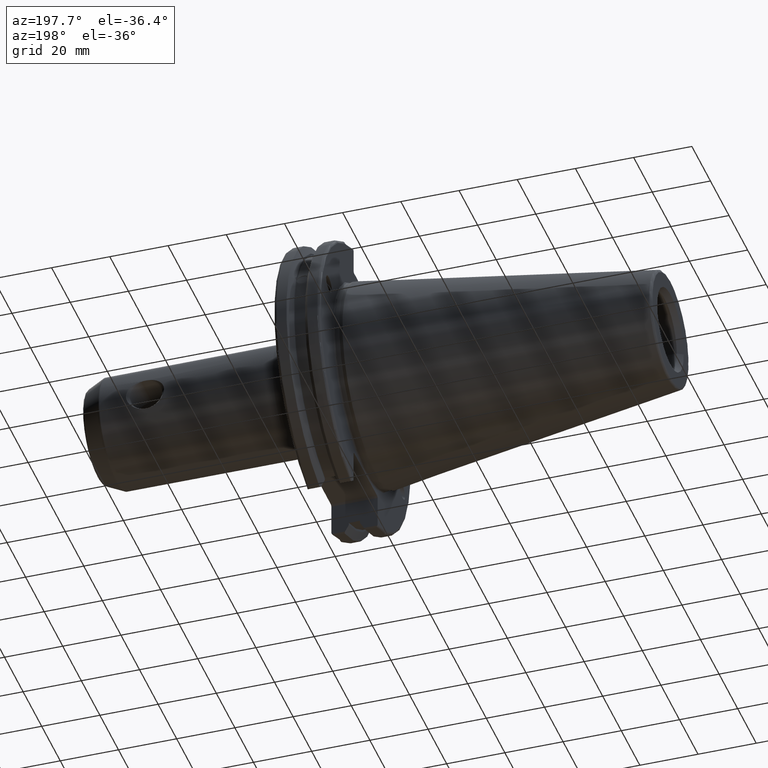
[diagram: clean part render]
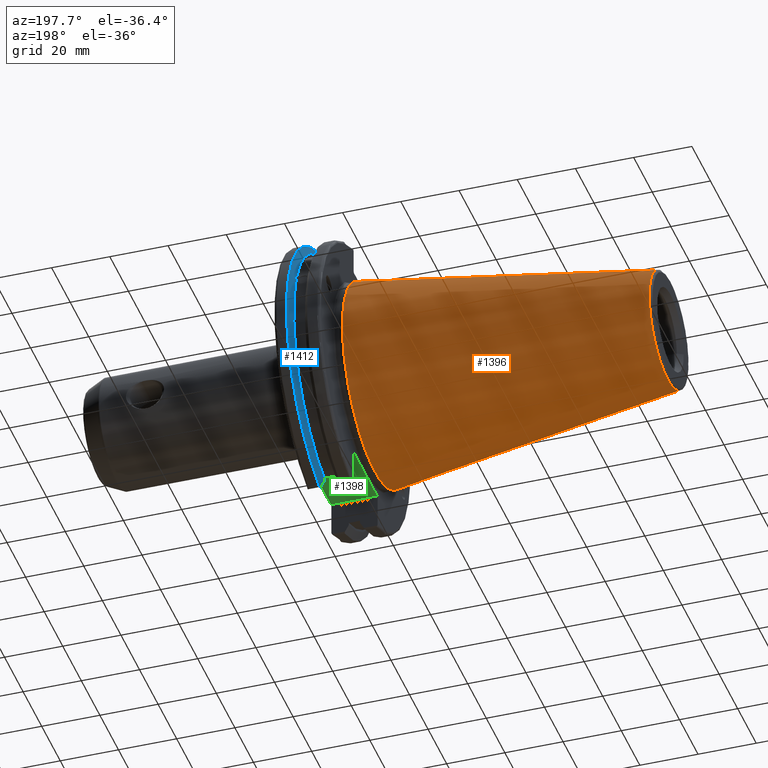
[diagram: same view with three faces highlighted in distinct colors, each labeled with its STEP entity id]
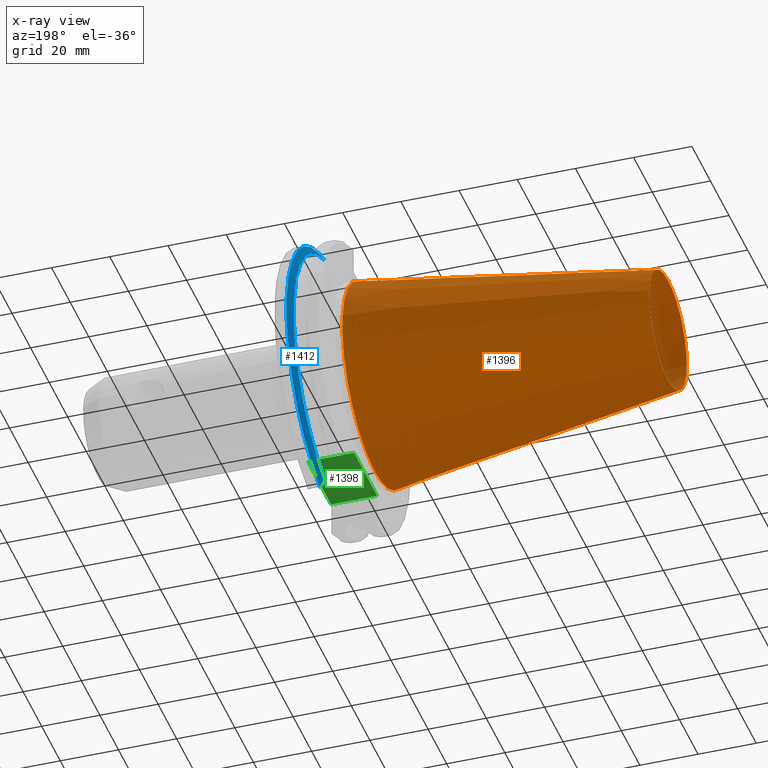
[diagram: x-ray of the same camera — body ghosted, the three highlighted faces saturated]
A machine part, auxiliary view with three faces highlighted in distinct colors.
The next image is the same camera in x-ray (body ghosted, the three faces saturated) — at least one of them is partly hidden behind the body in this view.
Their STEP definitions:

[orange] entity #1396 — the highlighted conical surface has half-angle 8.297 deg.
#164=FACE_OUTER_BOUND('',#255,.T.);
#255=EDGE_LOOP('',(#1198,#1199,#1200,#1201,#1202));
#342=CIRCLE('',#1557,20.233121911427);
#343=CIRCLE('',#1558,20.233121911427);
#347=CIRCLE('',#1564,34.925);
#427=LINE('',#2665,#515);
#515=VECTOR('',#1908,27.5166666666666);
#688=VERTEX_POINT('',#2652);
#689=VERTEX_POINT('',#2653);
#692=VERTEX_POINT('',#2663);
#873=EDGE_CURVE('',#688,#689,#342,.T.);
#874=EDGE_CURVE('',#689,#688,#343,.T.);
#878=EDGE_CURVE('',#692,#692,#347,.T.);
#879=EDGE_CURVE('',#692,#689,#427,.T.);
#1198=ORIENTED_EDGE('',*,*,#878,.F.);
#1199=ORIENTED_EDGE('',*,*,#879,.T.);
#1200=ORIENTED_EDGE('',*,*,#873,.F.);
#1201=ORIENTED_EDGE('',*,*,#874,.F.);
#1202=ORIENTED_EDGE('',*,*,#879,.F.);
#1338=CONICAL_SURFACE('',#1563,27.5166666666666,0.14481249823894);
#1396=ADVANCED_FACE('',(#164),#1338,.T.);
#1557=AXIS2_PLACEMENT_3D('',#2654,#1892,#1893);
#1558=AXIS2_PLACEMENT_3D('',#2655,#1894,#1895);
#1563=AXIS2_PLACEMENT_3D('',#2662,#1904,#1905);
#1564=AXIS2_PLACEMENT_3D('',#2664,#1906,#1907);
#1892=DIRECTION('center_axis',(-1.,0.,0.));
#1893=DIRECTION('ref_axis',(0.,-1.,3.06161699786838E-17));
#1894=DIRECTION('center_axis',(-1.,0.,0.));
#1895=DIRECTION('ref_axis',(0.,-1.,3.06161699786838E-17));
#1904=DIRECTION('center_axis',(1.,0.,0.));
#1905=DIRECTION('ref_axis',(0.,1.,0.));
#1906=DIRECTION('center_axis',(1.,0.,0.));
#1907=DIRECTION('ref_axis',(0.,0.,-1.));
#1908=DIRECTION('',(-0.989532981063281,0.144306893071729,1.76724974695192E-17));
#2652=CARTESIAN_POINT('',(-100.744306893072,-2.47784279855872E-15,20.233121911427));
#2653=CARTESIAN_POINT('',(-100.744306893072,-20.233121911427,-2.47784279855872E-15));
#2654=CARTESIAN_POINT('Origin',(-100.744306893072,0.,-3.09730349819841E-15));
#2655=CARTESIAN_POINT('Origin',(-100.744306893072,0.,-3.09730349819841E-15));
#2662=CARTESIAN_POINT('Origin',(-50.8,0.,0.));
#2663=CARTESIAN_POINT('',(-8.88178419700125E-15,-34.925,-4.27707894602213E-15));
#2664=CARTESIAN_POINT('Origin',(0.,0.,0.));
#2665=CARTESIAN_POINT('',(-50.8,-27.5166666666666,-3.3698197756538E-15));

[blue] entity #1412 — the highlighted conical surface has half-angle 60 deg.
#23=(
BOUNDED_CURVE()
B_SPLINE_CURVE(2,(#2501,#2502,#2503),.UNSPECIFIED.,.F.,.F.)
B_SPLINE_CURVE_WITH_KNOTS((3,3),(0.325260944932521,0.390084992222202),
 .UNSPECIFIED.)
CURVE()
GEOMETRIC_REPRESENTATION_ITEM()
RATIONAL_B_SPLINE_CURVE((1.00019140645994,1.00011477674864,1.))
REPRESENTATION_ITEM('')
);
#24=(
BOUNDED_CURVE()
B_SPLINE_CURVE(2,(#2515,#2516,#2517),.UNSPECIFIED.,.F.,.F.)
B_SPLINE_CURVE_WITH_KNOTS((3,3),(0.0558332664532001,0.331657177124504),
 .UNSPECIFIED.)
CURVE()
GEOMETRIC_REPRESENTATION_ITEM()
RATIONAL_B_SPLINE_CURVE((1.00012873636632,1.00038235574022,1.))
REPRESENTATION_ITEM('')
);
#29=(
BOUNDED_CURVE()
B_SPLINE_CURVE(2,(#2680,#2681,#2682),.UNSPECIFIED.,.F.,.F.)
B_SPLINE_CURVE_WITH_KNOTS((3,3),(0.,0.275823910671402),.UNSPECIFIED.)
CURVE()
GEOMETRIC_REPRESENTATION_ITEM()
RATIONAL_B_SPLINE_CURVE((1.,1.00038235574129,1.00012873636668))
REPRESENTATION_ITEM('')
);
#30=(
BOUNDED_CURVE()
B_SPLINE_CURVE(2,(#2697,#2698,#2699),.UNSPECIFIED.,.F.,.F.)
B_SPLINE_CURVE_WITH_KNOTS((3,3),(0.,0.0648240472897064),.UNSPECIFIED.)
CURVE()
GEOMETRIC_REPRESENTATION_ITEM()
RATIONAL_B_SPLINE_CURVE((1.,1.00011477674844,1.00019140645961))
REPRESENTATION_ITEM('')
);
#180=FACE_OUTER_BOUND('',#271,.T.);
#271=EDGE_LOOP('',(#1270,#1271,#1272,#1273,#1274,#1275,#1276,#1277,#1278));
#326=CIRCLE('',#1520,46.4219772964944);
#348=CIRCLE('',#1576,49.2125);
#351=CIRCLE('',#1584,46.4219772964944);
#544=B_SPLINE_CURVE_WITH_KNOTS('',3,(#2305,#2306,#2307,#2308,#2309,#2310,
#2311,#2312),.UNSPECIFIED.,.F.,.F.,(4,2,2,4),(0.426712868358719,0.441644498666905,
0.480313313223129,0.518982127779353),.UNSPECIFIED.);
#548=B_SPLINE_CURVE_WITH_KNOTS('',3,(#2367,#2368,#2369,#2370,#2371,#2372,
#2373,#2374),.UNSPECIFIED.,.F.,.F.,(4,2,2,4),(0.518982127779353,0.557650942335576,
0.5963197568918,0.611251387199989),.UNSPECIFIED.);
#624=VERTEX_POINT('',#2302);
#625=VERTEX_POINT('',#2304);
#632=VERTEX_POINT('',#2365);
#641=VERTEX_POINT('',#2407);
#667=VERTEX_POINT('',#2498);
#668=VERTEX_POINT('',#2500);
#693=VERTEX_POINT('',#2677);
#694=VERTEX_POINT('',#2679);
#697=VERTEX_POINT('',#2695);
#783=EDGE_CURVE('',#625,#624,#544,.T.);
#791=EDGE_CURVE('',#624,#632,#548,.T.);
#803=EDGE_CURVE('',#641,#625,#326,.T.);
#836=EDGE_CURVE('',#667,#668,#23,.T.);
#841=EDGE_CURVE('',#667,#641,#24,.T.);
#886=EDGE_CURVE('',#694,#693,#29,.T.);
#894=EDGE_CURVE('',#697,#693,#30,.T.);
#895=EDGE_CURVE('',#668,#697,#348,.T.);
#901=EDGE_CURVE('',#632,#694,#351,.T.);
#1270=ORIENTED_EDGE('',*,*,#783,.T.);
#1271=ORIENTED_EDGE('',*,*,#791,.T.);
#1272=ORIENTED_EDGE('',*,*,#901,.T.);
#1273=ORIENTED_EDGE('',*,*,#886,.T.);
#1274=ORIENTED_EDGE('',*,*,#894,.F.);
#1275=ORIENTED_EDGE('',*,*,#895,.F.);
#1276=ORIENTED_EDGE('',*,*,#836,.F.);
#1277=ORIENTED_EDGE('',*,*,#841,.T.);
#1278=ORIENTED_EDGE('',*,*,#803,.T.);
#1340=CONICAL_SURFACE('',#1583,47.8172386482472,1.0471975511966);
#1412=ADVANCED_FACE('',(#180),#1340,.T.);
#1520=AXIS2_PLACEMENT_3D('',#2408,#1787,#1788);
#1576=AXIS2_PLACEMENT_3D('',#2701,#1944,#1945);
#1583=AXIS2_PLACEMENT_3D('',#2714,#1961,#1962);
#1584=AXIS2_PLACEMENT_3D('',#2715,#1963,#1964);
#1787=DIRECTION('center_axis',(1.,0.,0.));
#1788=DIRECTION('ref_axis',(0.,0.,-1.));
#1944=DIRECTION('center_axis',(1.,0.,0.));
#1945=DIRECTION('ref_axis',(0.,0.,-1.));
#1961=DIRECTION('center_axis',(1.,0.,0.));
#1962=DIRECTION('ref_axis',(0.,1.,0.));
#1963=DIRECTION('center_axis',(1.,0.,0.));
#1964=DIRECTION('ref_axis',(0.,0.,-1.));
#2302=CARTESIAN_POINT('',(13.2341,43.923494649906,15.9868446375166));
#2304=CARTESIAN_POINT('',(13.0491,43.9096390749305,15.0646464421033));
#2305=CARTESIAN_POINT('Ctrl Pts',(13.0491,43.9096390749305,15.0646464421033));
#2306=CARTESIAN_POINT('Ctrl Pts',(13.0660815609661,43.9250360001461,15.1104047527575));
#2307=CARTESIAN_POINT('Ctrl Pts',(13.0821132459668,43.9385582852181,15.1564111356409));
#2308=CARTESIAN_POINT('Ctrl Pts',(13.1358132615496,43.9797830409459,15.3217566390709));
#2309=CARTESIAN_POINT('Ctrl Pts',(13.1719838933644,43.9989016655819,15.4570249042868));
#2310=CARTESIAN_POINT('Ctrl Pts',(13.2212913174802,43.9931221605126,15.7289849146254));
#2311=CARTESIAN_POINT('Ctrl Pts',(13.2341,43.9675796948952,15.8657219718732));
#2312=CARTESIAN_POINT('Ctrl Pts',(13.2341,43.923494649906,15.9868446375166));
#2365=CARTESIAN_POINT('',(13.0491,43.3201030900029,16.684383248648));
#2367=CARTESIAN_POINT('Ctrl Pts',(13.2341,43.923494649906,15.9868446375166));
#2368=CARTESIAN_POINT('Ctrl Pts',(13.2341,43.8794096049169,16.10796730316));
#2369=CARTESIAN_POINT('Ctrl Pts',(13.2212913174802,43.8110833825827,16.2291323464527));
#2370=CARTESIAN_POINT('Ctrl Pts',(13.1719838933644,43.6406982153492,16.441180795372));
#2371=CARTESIAN_POINT('Ctrl Pts',(13.1358132615496,43.5391037343221,16.5325130832406));
#2372=CARTESIAN_POINT('Ctrl Pts',(13.0821132459668,43.4012416983557,16.6326763251437));
#2373=CARTESIAN_POINT('Ctrl Pts',(13.0660815609661,43.3613106941341,16.6592273018006));
#2374=CARTESIAN_POINT('Ctrl Pts',(13.0491,43.3201030900029,16.684383248648));
#2407=CARTESIAN_POINT('',(13.0491,12.95,-44.5791147973605));
#2408=CARTESIAN_POINT('Origin',(13.0491,0.,0.));
#2498=CARTESIAN_POINT('',(14.3818103943757,12.95,-46.9780755322918));
#2500=CARTESIAN_POINT('',(14.6602090340487,13.4317035994433,-47.3440544806494));
#2501=CARTESIAN_POINT('Ctrl Pts',(14.3818103943757,12.95,-46.9780755322918));
#2502=CARTESIAN_POINT('Ctrl Pts',(14.5199310333617,13.1896660169965,-47.1601640966264));
#2503=CARTESIAN_POINT('Ctrl Pts',(14.6602090340487,13.4317035994433,-47.3440544806494));
#2515=CARTESIAN_POINT('Ctrl Pts',(14.3818103943757,12.95,-46.9780755322918));
#2516=CARTESIAN_POINT('Ctrl Pts',(13.6979955094851,12.95,-45.7494966802933));
#2517=CARTESIAN_POINT('Ctrl Pts',(13.0491,12.95,-44.5791147973604));
#2677=CARTESIAN_POINT('',(14.3818103943757,12.95,46.9780755322918));
#2679=CARTESIAN_POINT('',(13.0491,12.95,44.5791147973604));
#2680=CARTESIAN_POINT('Ctrl Pts',(13.0491,12.95,44.5791147973604));
#2681=CARTESIAN_POINT('Ctrl Pts',(13.6979955094846,12.95,45.7494966802924));
#2682=CARTESIAN_POINT('Ctrl Pts',(14.3818103943757,12.95,46.9780755322918));
#2695=CARTESIAN_POINT('',(14.6602090340487,13.4317035994433,47.3440544806494));
#2697=CARTESIAN_POINT('Ctrl Pts',(14.6602090340487,13.4317035994433,47.3440544806494));
#2698=CARTESIAN_POINT('Ctrl Pts',(14.5199310333618,13.1896660169966,47.1601640966264));
#2699=CARTESIAN_POINT('Ctrl Pts',(14.3818103943757,12.95,46.9780755322918));
#2701=CARTESIAN_POINT('Origin',(14.6602090340487,0.,0.));
#2714=CARTESIAN_POINT('Origin',(13.8546545170244,0.,0.));
#2715=CARTESIAN_POINT('Origin',(13.0491,0.,0.));

[green] entity #1398 — the highlighted planar face has unit normal (0, 0, 1).
#53=PLANE('',#1566);
#166=FACE_OUTER_BOUND('',#257,.T.);
#257=EDGE_LOOP('',(#1207,#1208,#1209,#1210));
#369=LINE('',#2125,#457);
#407=LINE('',#2455,#495);
#428=LINE('',#2667,#516);
#429=LINE('',#2669,#517);
#457=VECTOR('',#1644,10.);
#495=VECTOR('',#1832,10.);
#516=VECTOR('',#1911,10.);
#517=VECTOR('',#1914,10.);
#584=VERTEX_POINT('',#2122);
#585=VERTEX_POINT('',#2124);
#659=VERTEX_POINT('',#2452);
#660=VERTEX_POINT('',#2454);
#726=EDGE_CURVE('',#584,#585,#369,.T.);
#825=EDGE_CURVE('',#659,#660,#407,.T.);
#880=EDGE_CURVE('',#585,#659,#428,.T.);
#881=EDGE_CURVE('',#660,#584,#429,.T.);
#1207=ORIENTED_EDGE('',*,*,#880,.F.);
#1208=ORIENTED_EDGE('',*,*,#726,.F.);
#1209=ORIENTED_EDGE('',*,*,#881,.F.);
#1210=ORIENTED_EDGE('',*,*,#825,.F.);
#1398=ADVANCED_FACE('',(#166),#53,.F.);
#1566=AXIS2_PLACEMENT_3D('',#2668,#1912,#1913);
#1644=DIRECTION('',(0.,1.,0.));
#1832=DIRECTION('',(0.,-1.,0.));
#1911=DIRECTION('',(-1.,2.63163976207444E-16,0.));
#1912=DIRECTION('center_axis',(0.,0.,1.));
#1913=DIRECTION('ref_axis',(1.,0.,0.));
#1914=DIRECTION('',(1.,2.63163976207445E-16,0.));
#2122=CARTESIAN_POINT('',(19.05,-12.45,-35.306));
#2124=CARTESIAN_POINT('',(19.05,12.45,-35.306));
#2125=CARTESIAN_POINT('',(19.05,-3.33066907387547E-15,-35.306));
#2452=CARTESIAN_POINT('',(3.175,12.45,-35.306));
#2454=CARTESIAN_POINT('',(3.175,-12.45,-35.306));
#2455=CARTESIAN_POINT('',(3.175,24.60625,-35.306));
#2667=CARTESIAN_POINT('',(10.63125,12.45,-35.306));
#2668=CARTESIAN_POINT('Origin',(18.0875,-6.66133814775094E-15,-35.306));
#2669=CARTESIAN_POINT('',(19.06875,-12.45,-35.306));